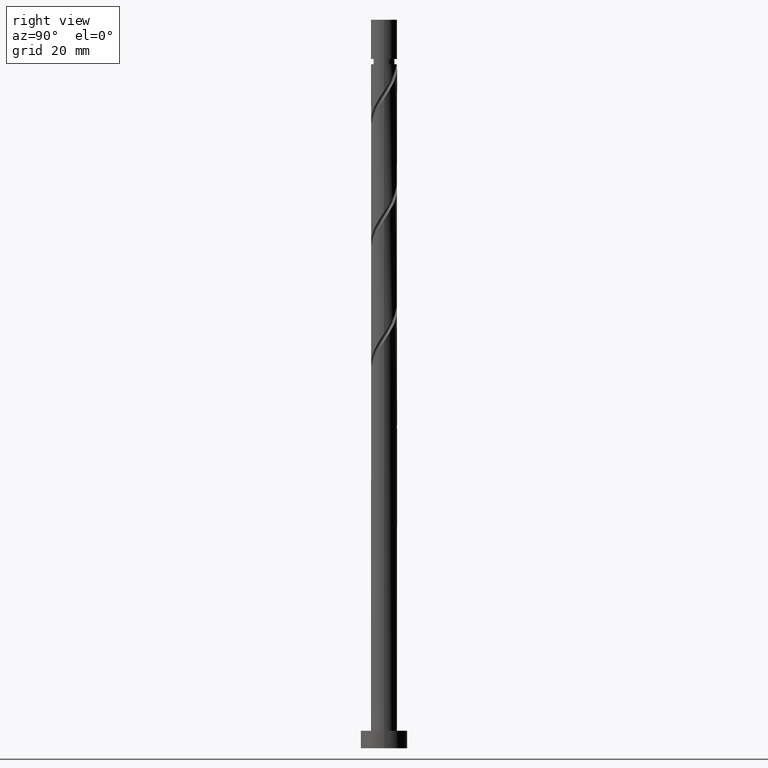
[diagram: clean part render]
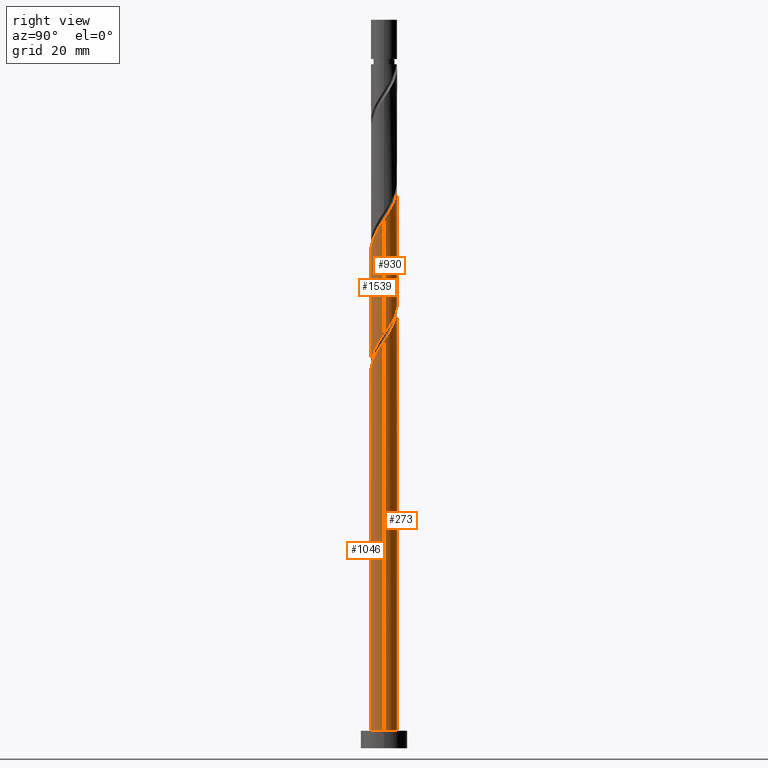
[diagram: same view with one multi-face feature highlighted, each face labeled with its STEP entity id]
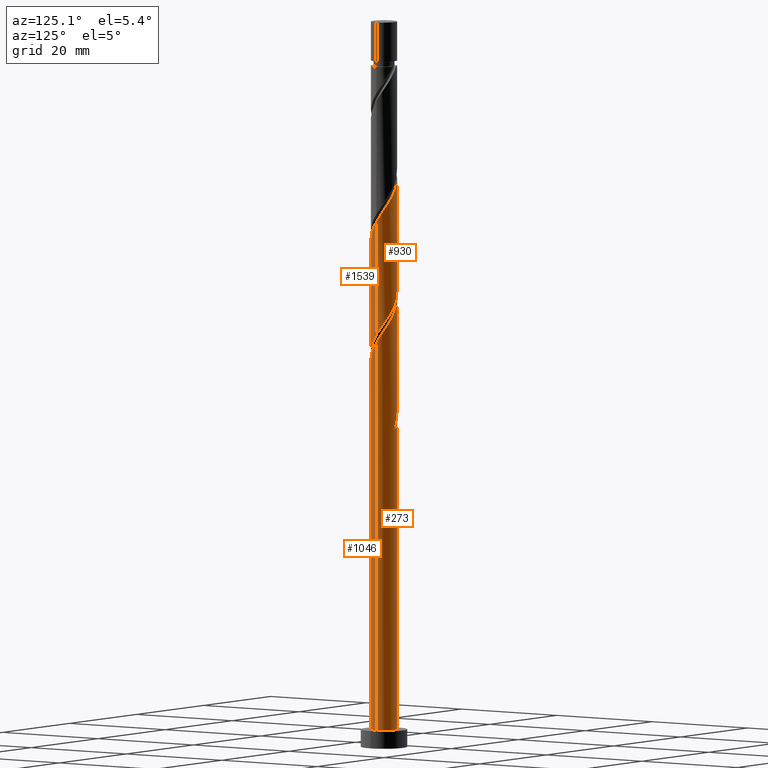
[diagram: same view with one multi-face feature highlighted, each face labeled with its STEP entity id]
A machine part, right view. The highlighted faces form ONE feature: a constant-radius fillet chain: 4 tangent blend faces with common blend radius 2.25 mm. The faces share edges in the B-rep.
A second angle (auxiliary view) of the same feature is appended — it is thin or edge-on in the first view.
Their STEP definitions:
[1] entity #930 (Cylinder):
#17 = CARTESIAN_POINT ( 'NONE',  ( -0.4477443466979789677, 2.205000000000003180, 96.54250534596350519 ) ) ;
#34 = CARTESIAN_POINT ( 'NONE',  ( -1.899155269134960689, 1.258056147528825885, 99.14667201263016238 ) ) ;
#44 = CARTESIAN_POINT ( 'NONE',  ( 1.417443264702794803, 1.783353750091892564, 74.14667201263016238 ) ) ;
#59 = CARTESIAN_POINT ( 'NONE',  ( -1.783353750091892564, 1.417443264702794803, 79.35500534596349098 ) ) ;
#67 = CARTESIAN_POINT ( 'NONE',  ( 2.194964723631358972, 0.6096112438530348898, 72.06333867929680537 ) ) ;
#122 = CARTESIAN_POINT ( 'NONE',  ( -2.047059996383162161, 0.9338336956909314424, 99.66750534596350519 ) ) ;
#131 = CARTESIAN_POINT ( 'NONE',  ( -1.417443264702797467, 1.783353750091896783, 98.10500534596351940 ) ) ;
#139 = CARTESIAN_POINT ( 'NONE',  ( -0.09850665578237585707, 2.275915737760237256, 96.02167201263017660 ) ) ;
#147 = CARTESIAN_POINT ( 'NONE',  ( 0.2555522940353308625, 2.235440230695800778, 95.50083867929684800 ) ) ;
#160 = CARTESIAN_POINT ( 'NONE',  ( -0.9338336956909289999, 2.047059996383158609, 77.79250534596351940 ) ) ;
#218 = CARTESIAN_POINT ( 'NONE',  ( -2.250000000000000000, 0.000000000000000000, 125.0000000000000000 ) ) ;
#232 = DIRECTION ( 'NONE',  ( -1.000000000000000000, 0.000000000000000000, 0.000000000000000000 ) ) ;
#237 = CARTESIAN_POINT ( 'NONE',  ( 2.205000000000003180, 0.4477443466979790787, 91.33417201263019081 ) ) ;
#244 = CARTESIAN_POINT ( 'NONE',  ( 2.134084262239768659, 0.7969820376135818840, 91.85500534596350519 ) ) ;
#269 = CARTESIAN_POINT ( 'NONE',  ( 2.250000000000002665, 1.874137847900713446E-15, 90.66936957115989060 ) ) ;
#279 = DIRECTION ( 'NONE',  ( -0.000000000000000000, -0.000000000000000000, -1.000000000000000000 ) ) ;
#292 = ORIENTED_EDGE ( 'NONE', *, *, #847, .F. ) ;
#399 = CARTESIAN_POINT ( 'NONE',  ( 2.047059996383158609, 0.9338336956909285558, 72.58417201263013396 ) ) ;
#418 = EDGE_CURVE ( 'NONE', #1467, #1109, #584, .T. ) ;
#518 = CARTESIAN_POINT ( 'NONE',  ( -2.235440230695800778, 0.2555522940353303629, 100.7091720126301766 ) ) ;
#521 = CARTESIAN_POINT ( 'NONE',  ( 1.107212651158188788, 1.958719006165828169, 74.66750534596346256 ) ) ;
#538 = CARTESIAN_POINT ( 'NONE',  ( 0.7969820376135817730, 2.134084262239763774, 75.18833867929680537 ) ) ;
#540 = AXIS2_PLACEMENT_3D ( 'NONE', #1193, #585, #232 ) ;
#555 = CARTESIAN_POINT ( 'NONE',  ( 2.235440230695796782, 0.2555522940353288086, 71.54250534596350519 ) ) ;
#584 =( BOUNDED_CURVE ( )  B_SPLINE_CURVE ( 2, ( #269, #743, #237, #244, #870, #725, #987, #1229, #1219, #1364, #147, #139, #17, #717, #707, #131, #630, #34, #122, #1096, #518, #1474, #1355 ),
 .UNSPECIFIED., .F., .T. ) 
 B_SPLINE_CURVE_WITH_KNOTS ( ( 3, 2, 2, 2, 2, 2, 2, 2, 2, 2, 2, 3 ),
 ( 0.4295322023138553047, 0.4375000000000000000, 0.4499999999999999556, 0.4625000000000000222, 0.4749999999999999778, 0.4875000000000000444, 0.5000000000000000000, 0.5124999999999999556, 0.5250000000000000222, 0.5374999999999999778, 0.5500000000000000444, 0.5545322023138551382 ),
 .UNSPECIFIED. ) 
 CURVE ( )  GEOMETRIC_REPRESENTATION_ITEM ( )  RATIONAL_B_SPLINE_CURVE ( ( 0.9039174447099407317, 0.9019565955404702517, 0.9090909090909186085, 0.8978984914501346726, 0.9090909090909186085, 0.8978984914501346726, 0.9090909090909186085, 0.8978984914501346726, 0.9090909090909186085, 0.8978984914501346726, 0.9090909090909186085, 0.8978984914501346726, 0.9090909090909186085, 0.8978984914501346726, 0.9090909090909186085, 0.8978984914501346726, 0.9090909090909186085, 0.8978984914501346726, 0.9090909090909186085, 0.8978984914501346726, 0.9090909090909186085, 0.9050328050005831404, 0.9039174447099409537 ) ) 
 REPRESENTATION_ITEM ( '' )  );
#585 = DIRECTION ( 'NONE',  ( -0.000000000000000000, -0.000000000000000000, -1.000000000000000000 ) ) ;
#630 = CARTESIAN_POINT ( 'NONE',  ( -1.658299266918879189, 1.520704948810361445, 98.62583867929683379 ) ) ;
#632 = CARTESIAN_POINT ( 'NONE',  ( -2.204999999999998295, 0.4477443466979791342, 80.91750534596350519 ) ) ;
#639 = CARTESIAN_POINT ( 'NONE',  ( -1.520704948810358115, 1.658299266918875858, 78.83417201263016238 ) ) ;
#647 = CARTESIAN_POINT ( 'NONE',  ( -1.958719006165828169, 1.107212651158188343, 79.87583867929683379 ) ) ;
#662 = CARTESIAN_POINT ( 'NONE',  ( 0.4477443466979795783, 2.204999999999998295, 75.70917201263017660 ) ) ;
#688 = VERTEX_POINT ( 'NONE', #1390 ) ;
#691 = FACE_OUTER_BOUND ( 'NONE', #1553, .T. ) ;
#696 = DIRECTION ( 'NONE',  ( -0.000000000000000000, -0.000000000000000000, -1.000000000000000000 ) ) ;
#707 = CARTESIAN_POINT ( 'NONE',  ( -1.107212651158190120, 1.958719006165832388, 97.58417201263016238 ) ) ;
#717 = CARTESIAN_POINT ( 'NONE',  ( -0.7969820376135825502, 2.134084262239768659, 97.06333867929684800 ) ) ;
#725 = CARTESIAN_POINT ( 'NONE',  ( 1.783353750091897227, 1.417443264702797245, 92.89667201263016238 ) ) ;
#743 = CARTESIAN_POINT ( 'NONE',  ( 2.250000000000001332, 0.2261335084333251644, 91.00367414656773235 ) ) ;
#777 = CARTESIAN_POINT ( 'NONE',  ( -0.6096112438530351119, 2.194964723631358972, 77.27167201263017660 ) ) ;
#847 = EDGE_CURVE ( 'NONE', #1109, #688, #1534, .T. ) ;
#854 = CARTESIAN_POINT ( 'NONE',  ( 2.249999999999998224, 3.118565378906812879E-15, 71.16564112076710558 ) ) ;
#870 = CARTESIAN_POINT ( 'NONE',  ( 1.958719006165832832, 1.107212651158189454, 92.37583867929687642 ) ) ;
#875 = CARTESIAN_POINT ( 'NONE',  ( -2.250000000000003109, -1.004537886474782302E-15, 101.0860362378265620 ) ) ;
#882 = LINE ( 'NONE', #1376, #1151 ) ;
#890 = CARTESIAN_POINT ( 'NONE',  ( -1.258056147528822999, 1.899155269134957136, 78.31333867929681958 ) ) ;
#905 = ORIENTED_EDGE ( 'NONE', *, *, #1304, .F. ) ;
#930 = ADVANCED_FACE ( 'NONE', ( #691 ), #1185, .T. ) ;
#951 = CARTESIAN_POINT ( 'NONE',  ( 2.250000000000002665, 1.874137847900713446E-15, 90.66936957115989060 ) ) ;
#961 = ORIENTED_EDGE ( 'NONE', *, *, #418, .F. ) ;
#966 = ORIENTED_EDGE ( 'NONE', *, *, #1312, .T. ) ;
#987 = CARTESIAN_POINT ( 'NONE',  ( 1.520704948810361445, 1.658299266918878301, 93.41750534596350519 ) ) ;
#1007 = CARTESIAN_POINT ( 'NONE',  ( -2.134084262239763774, 0.7969820376135814399, 80.39667201263013396 ) ) ;
#1014 = CARTESIAN_POINT ( 'NONE',  ( -2.249999999999998668, 2.863682631592314102E-15, 81.58230778743374856 ) ) ;
#1021 = VECTOR ( 'NONE', #696, 1000.000000000000000 ) ;
#1024 = CARTESIAN_POINT ( 'NONE',  ( 2.249999999999998668, 0.1281909092544750717, 71.35515220997437780 ) ) ;
#1063 =( BOUNDED_CURVE ( )  B_SPLINE_CURVE ( 2, ( #1014, #1381, #632, #1007, #647, #59, #639, #890, #160, #777, #1143, #1277, #662, #538, #521, #44, #1268, #1129, #399, #67, #555, #1024, #1508 ),
 .UNSPECIFIED., .F., .T. ) 
 B_SPLINE_CURVE_WITH_KNOTS ( ( 3, 2, 2, 2, 2, 2, 2, 2, 2, 2, 2, 3 ),
 ( 0.6795322023138552492, 0.6875000000000000000, 0.6999999999999999556, 0.7125000000000000222, 0.7249999999999999778, 0.7375000000000000444, 0.7500000000000000000, 0.7624999999999999556, 0.7750000000000000222, 0.7874999999999999778, 0.8000000000000000444, 0.8045322023138551382 ),
 .UNSPECIFIED. ) 
 CURVE ( )  GEOMETRIC_REPRESENTATION_ITEM ( )  RATIONAL_B_SPLINE_CURVE ( ( 0.9039174447099332932, 0.9019565955404627022, 0.9090909090909110590, 0.8978984914501272341, 0.9090909090909110590, 0.8978984914501272341, 0.9090909090909110590, 0.8978984914501272341, 0.9090909090909110590, 0.8978984914501272341, 0.9090909090909110590, 0.8978984914501272341, 0.9090909090909110590, 0.8978984914501272341, 0.9090909090909110590, 0.8978984914501272341, 0.9090909090909110590, 0.8978984914501272341, 0.9090909090909110590, 0.8978984914501272341, 0.9090909090909110590, 0.9050328050005755909, 0.9039174447099334042 ) ) 
 REPRESENTATION_ITEM ( '' )  );
#1096 = CARTESIAN_POINT ( 'NONE',  ( -2.194964723631363412, 0.6096112438530368882, 100.1883386792968480 ) ) ;
#1109 = VERTEX_POINT ( 'NONE', #875 ) ;
#1129 = CARTESIAN_POINT ( 'NONE',  ( 1.899155269134957136, 1.258056147528822777, 73.10500534596347677 ) ) ;
#1143 = CARTESIAN_POINT ( 'NONE',  ( -0.2555522940353292527, 2.235440230695796782, 76.75083867929681958 ) ) ;
#1151 = VECTOR ( 'NONE', #279, 1000.000000000000000 ) ;
#1185 = CYLINDRICAL_SURFACE ( 'NONE', #540, 2.250000000000000000 ) ;
#1193 = CARTESIAN_POINT ( 'NONE',  ( 0.000000000000000000, 0.000000000000000000, 125.0000000000000000 ) ) ;
#1208 = VERTEX_POINT ( 'NONE', #854 ) ;
#1219 = CARTESIAN_POINT ( 'NONE',  ( 0.9338336956909318864, 2.047059996383162161, 94.45917201263014817 ) ) ;
#1229 = CARTESIAN_POINT ( 'NONE',  ( 1.258056147528826552, 1.899155269134960244, 93.93833867929684800 ) ) ;
#1268 = CARTESIAN_POINT ( 'NONE',  ( 1.658299266918875858, 1.520704948810357671, 73.62583867929681958 ) ) ;
#1277 = CARTESIAN_POINT ( 'NONE',  ( 0.09850665578237670361, 2.275915737760233259, 76.23000534596349098 ) ) ;
#1304 = EDGE_CURVE ( 'NONE', #688, #1208, #1063, .T. ) ;
#1312 = EDGE_CURVE ( 'NONE', #1467, #1208, #882, .T. ) ;
#1355 = CARTESIAN_POINT ( 'NONE',  ( -2.250000000000003109, -1.004537886474782302E-15, 101.0860362378265620 ) ) ;
#1364 = CARTESIAN_POINT ( 'NONE',  ( 0.6096112438530373323, 2.194964723631363412, 94.98000534596349098 ) ) ;
#1376 = CARTESIAN_POINT ( 'NONE',  ( 2.250000000000000000, 2.755455298081543792E-16, 125.0000000000000000 ) ) ;
#1381 = CARTESIAN_POINT ( 'NONE',  ( -2.249999999999998668, 0.2261335084333241652, 81.24800321202590681 ) ) ;
#1390 = CARTESIAN_POINT ( 'NONE',  ( -2.249999999999998668, 2.863682631592314102E-15, 81.58230778743374856 ) ) ;
#1467 = VERTEX_POINT ( 'NONE', #951 ) ;
#1474 = CARTESIAN_POINT ( 'NONE',  ( -2.250000000000002220, 0.1281909092544763207, 100.8965251486192614 ) ) ;
#1508 = CARTESIAN_POINT ( 'NONE',  ( 2.249999999999998224, 3.118565378906812879E-15, 71.16564112076710558 ) ) ;
#1534 = LINE ( 'NONE', #218, #1021 ) ;
#1553 = EDGE_LOOP ( 'NONE', ( #961, #966, #905, #292 ) ) ;
[2] entity #1539 (Cylinder):
#25 = CARTESIAN_POINT ( 'NONE',  ( 2.235440230695800778, -0.2555522940353305295, 90.29250534596349098 ) ) ;
#129 = CARTESIAN_POINT ( 'NONE',  ( 2.249999999999998224, 3.118565378906812879E-15, 71.16564112076710558 ) ) ;
#145 = CARTESIAN_POINT ( 'NONE',  ( 1.417443264702797023, -1.783353750091897227, 87.68833867929684800 ) ) ;
#163 = CARTESIAN_POINT ( 'NONE',  ( 1.899155269134960689, -1.258056147528826552, 88.73000534596350519 ) ) ;
#169 = CARTESIAN_POINT ( 'NONE',  ( -1.899155269134956914, -1.258056147528822999, 62.68833867929681247 ) ) ;
#175 = CARTESIAN_POINT ( 'NONE',  ( -2.194964723631358972, -0.6096112438530351119, 61.64667201263014107 ) ) ;
#180 = ORIENTED_EDGE ( 'NONE', *, *, #645, .F. ) ;
#190 = ORIENTED_EDGE ( 'NONE', *, *, #1312, .F. ) ;
#201 = CARTESIAN_POINT ( 'NONE',  ( -1.417443264702794803, -1.783353750091892564, 63.73000534596348388 ) ) ;
#279 = DIRECTION ( 'NONE',  ( -0.000000000000000000, -0.000000000000000000, -1.000000000000000000 ) ) ;
#288 = CARTESIAN_POINT ( 'NONE',  ( 2.249999999999998668, -0.2261335084333213619, 70.83133654535926382 ) ) ;
#318 = EDGE_CURVE ( 'NONE', #484, #412, #1423, .T. ) ;
#357 = CARTESIAN_POINT ( 'NONE',  ( 0.000000000000000000, 0.000000000000000000, 125.0000000000000000 ) ) ;
#361 =( BOUNDED_CURVE ( )  B_SPLINE_CURVE ( 2, ( #129, #288, #1383, #921, #911, #1171, #1033, #416, #408, #1518, #1009, #765, #1496, #1511, #900, #201, #1503, #169, #425, #175, #533, #1163, #1281 ),
 .UNSPECIFIED., .F., .T. ) 
 B_SPLINE_CURVE_WITH_KNOTS ( ( 3, 2, 2, 2, 2, 2, 2, 2, 2, 2, 2, 3 ),
 ( 0.8045322023138551382, 0.8125000000000000000, 0.8249999999999999556, 0.8375000000000000222, 0.8499999999999999778, 0.8625000000000000444, 0.8750000000000000000, 0.8874999999999999556, 0.9000000000000000222, 0.9124999999999999778, 0.9250000000000000444, 0.9295322023138552492 ),
 .UNSPECIFIED. ) 
 CURVE ( )  GEOMETRIC_REPRESENTATION_ITEM ( )  RATIONAL_B_SPLINE_CURVE ( ( 0.9039174447099334042, 0.9019565955404627022, 0.9090909090909110590, 0.8978984914501272341, 0.9090909090909110590, 0.8978984914501272341, 0.9090909090909110590, 0.8978984914501272341, 0.9090909090909110590, 0.8978984914501272341, 0.9090909090909110590, 0.8978984914501272341, 0.9090909090909110590, 0.8978984914501272341, 0.9090909090909110590, 0.8978984914501272341, 0.9090909090909110590, 0.8978984914501272341, 0.9090909090909110590, 0.8978984914501272341, 0.9090909090909110590, 0.9050328050005754799, 0.9039174447099332932 ) ) 
 REPRESENTATION_ITEM ( '' )  );
#375 = CARTESIAN_POINT ( 'NONE',  ( 0.7969820376135819950, -2.134084262239768659, 86.64667201263014817 ) ) ;
#383 = CARTESIAN_POINT ( 'NONE',  ( -2.134084262239768659, -0.7969820376135821061, 81.43833867929681958 ) ) ;
#394 = CARTESIAN_POINT ( 'NONE',  ( 0.4477443466979791897, -2.205000000000003180, 86.12583867929683379 ) ) ;
#408 = CARTESIAN_POINT ( 'NONE',  ( 0.9338336956909286668, -2.047059996383158609, 67.37583867929680537 ) ) ;
#412 = VERTEX_POINT ( 'NONE', #1106 ) ;
#416 = CARTESIAN_POINT ( 'NONE',  ( 1.258056147528822777, -1.899155269134957136, 67.89667201263014817 ) ) ;
#425 = CARTESIAN_POINT ( 'NONE',  ( -2.047059996383158609, -0.9338336956909286668, 62.16750534596349098 ) ) ;
#484 = VERTEX_POINT ( 'NONE', #620 ) ;
#493 = CARTESIAN_POINT ( 'NONE',  ( -1.783353750091896783, -1.417443264702797467, 82.48000534596350519 ) ) ;
#500 = CARTESIAN_POINT ( 'NONE',  ( -1.258056147528825885, -1.899155269134960244, 83.52167201263016238 ) ) ;
#533 = CARTESIAN_POINT ( 'NONE',  ( -2.235440230695796782, -0.2555522940353290862, 61.12583867929681247 ) ) ;
#535 =( BOUNDED_CURVE ( )  B_SPLINE_CURVE ( 2, ( #612, #1217, #1227, #383, #1337, #493, #868, #500, #985, #1352, #1472, #735, #394, #375, #1236, #145, #752, #163, #877, #741, #25, #1243, #628 ),
 .UNSPECIFIED., .F., .T. ) 
 B_SPLINE_CURVE_WITH_KNOTS ( ( 3, 2, 2, 2, 2, 2, 2, 2, 2, 2, 2, 3 ),
 ( 0.3045322023138552492, 0.3125000000000000000, 0.3249999999999999556, 0.3375000000000000222, 0.3499999999999999778, 0.3625000000000000444, 0.3750000000000000000, 0.3874999999999999556, 0.4000000000000000222, 0.4124999999999999778, 0.4250000000000000444, 0.4295322023138553047 ),
 .UNSPECIFIED. ) 
 CURVE ( )  GEOMETRIC_REPRESENTATION_ITEM ( )  RATIONAL_B_SPLINE_CURVE ( ( 0.9039174447099407317, 0.9019565955404702517, 0.9090909090909186085, 0.8978984914501346726, 0.9090909090909186085, 0.8978984914501346726, 0.9090909090909186085, 0.8978984914501346726, 0.9090909090909186085, 0.8978984914501346726, 0.9090909090909186085, 0.8978984914501346726, 0.9090909090909186085, 0.8978984914501346726, 0.9090909090909186085, 0.8978984914501346726, 0.9090909090909186085, 0.8978984914501346726, 0.9090909090909186085, 0.8978984914501346726, 0.9090909090909186085, 0.9050328050005829184, 0.9039174447099407317 ) ) 
 REPRESENTATION_ITEM ( '' )  );
#541 = DIRECTION ( 'NONE',  ( -0.000000000000000000, -0.000000000000000000, -1.000000000000000000 ) ) ;
#599 = EDGE_CURVE ( 'NONE', #484, #1467, #535, .T. ) ;
#603 = DIRECTION ( 'NONE',  ( -1.000000000000000000, 0.000000000000000000, 0.000000000000000000 ) ) ;
#609 = AXIS2_PLACEMENT_3D ( 'NONE', #357, #824, #603 ) ;
#612 = CARTESIAN_POINT ( 'NONE',  ( -2.250000000000003109, -2.144013697998416549E-15, 80.25270290449323340 ) ) ;
#620 = CARTESIAN_POINT ( 'NONE',  ( -2.250000000000003109, -2.144013697998416549E-15, 80.25270290449323340 ) ) ;
#628 = CARTESIAN_POINT ( 'NONE',  ( 2.250000000000002665, 1.874137847900713446E-15, 90.66936957115989060 ) ) ;
#645 = EDGE_CURVE ( 'NONE', #1208, #412, #361, .T. ) ;
#669 = ORIENTED_EDGE ( 'NONE', *, *, #318, .T. ) ;
#735 = CARTESIAN_POINT ( 'NONE',  ( 0.09850665578237610687, -2.275915737760237256, 85.60500534596351940 ) ) ;
#741 = CARTESIAN_POINT ( 'NONE',  ( 2.194964723631363412, -0.6096112438530371103, 89.77167201263014817 ) ) ;
#752 = CARTESIAN_POINT ( 'NONE',  ( 1.658299266918878523, -1.520704948810361445, 88.20917201263016238 ) ) ;
#765 = CARTESIAN_POINT ( 'NONE',  ( -0.09850665578237696729, -2.275915737760233259, 65.81333867929681958 ) ) ;
#805 = CARTESIAN_POINT ( 'NONE',  ( -2.250000000000000000, 0.000000000000000000, 125.0000000000000000 ) ) ;
#824 = DIRECTION ( 'NONE',  ( -0.000000000000000000, -0.000000000000000000, -1.000000000000000000 ) ) ;
#828 = CYLINDRICAL_SURFACE ( 'NONE', #609, 2.250000000000000000 ) ;
#854 = CARTESIAN_POINT ( 'NONE',  ( 2.249999999999998224, 3.118565378906812879E-15, 71.16564112076710558 ) ) ;
#868 = CARTESIAN_POINT ( 'NONE',  ( -1.520704948810361445, -1.658299266918878523, 83.00083867929681958 ) ) ;
#877 = CARTESIAN_POINT ( 'NONE',  ( 2.047059996383161717, -0.9338336956909318864, 89.25083867929681958 ) ) ;
#882 = LINE ( 'NONE', #1376, #1151 ) ;
#900 = CARTESIAN_POINT ( 'NONE',  ( -1.107212651158188343, -1.958719006165828169, 64.25083867929681958 ) ) ;
#911 = CARTESIAN_POINT ( 'NONE',  ( 1.958719006165828169, -1.107212651158188566, 69.45917201263016238 ) ) ;
#921 = CARTESIAN_POINT ( 'NONE',  ( 2.134084262239763774, -0.7969820376135816620, 69.98000534596347677 ) ) ;
#951 = CARTESIAN_POINT ( 'NONE',  ( 2.250000000000002665, 1.874137847900713446E-15, 90.66936957115989060 ) ) ;
#981 = ORIENTED_EDGE ( 'NONE', *, *, #599, .F. ) ;
#985 = CARTESIAN_POINT ( 'NONE',  ( -0.9338336956909318864, -2.047059996383161717, 84.04250534596349098 ) ) ;
#1009 = CARTESIAN_POINT ( 'NONE',  ( 0.2555522940353289751, -2.235440230695796782, 66.33417201263016238 ) ) ;
#1033 = CARTESIAN_POINT ( 'NONE',  ( 1.520704948810357671, -1.658299266918875858, 68.41750534596349098 ) ) ;
#1061 = VECTOR ( 'NONE', #541, 1000.000000000000000 ) ;
#1106 = CARTESIAN_POINT ( 'NONE',  ( -2.249999999999998668, 2.863682631592314102E-15, 60.74897445410041286 ) ) ;
#1151 = VECTOR ( 'NONE', #279, 1000.000000000000000 ) ;
#1163 = CARTESIAN_POINT ( 'NONE',  ( -2.249999999999999112, -0.1281909092544722684, 60.93848554330769929 ) ) ;
#1171 = CARTESIAN_POINT ( 'NONE',  ( 1.783353750091892564, -1.417443264702794803, 68.93833867929681958 ) ) ;
#1208 = VERTEX_POINT ( 'NONE', #854 ) ;
#1217 = CARTESIAN_POINT ( 'NONE',  ( -2.250000000000002665, -0.2261335084333238876, 80.58700747990106095 ) ) ;
#1227 = CARTESIAN_POINT ( 'NONE',  ( -2.205000000000003180, -0.4477443466979792452, 80.91750534596350519 ) ) ;
#1236 = CARTESIAN_POINT ( 'NONE',  ( 1.107212651158189676, -1.958719006165832832, 87.16750534596350519 ) ) ;
#1243 = CARTESIAN_POINT ( 'NONE',  ( 2.250000000000003109, -0.1281909092544719353, 90.47985848195263259 ) ) ;
#1281 = CARTESIAN_POINT ( 'NONE',  ( -2.249999999999998668, 2.863682631592314102E-15, 60.74897445410041286 ) ) ;
#1312 = EDGE_CURVE ( 'NONE', #1467, #1208, #882, .T. ) ;
#1337 = CARTESIAN_POINT ( 'NONE',  ( -1.958719006165832832, -1.107212651158190120, 81.95917201263017660 ) ) ;
#1352 = CARTESIAN_POINT ( 'NONE',  ( -0.6096112438530371103, -2.194964723631363412, 84.56333867929683379 ) ) ;
#1376 = CARTESIAN_POINT ( 'NONE',  ( 2.250000000000000000, 2.755455298081543792E-16, 125.0000000000000000 ) ) ;
#1383 = CARTESIAN_POINT ( 'NONE',  ( 2.204999999999998295, -0.4477443466979794118, 70.50083867929683379 ) ) ;
#1423 = LINE ( 'NONE', #805, #1061 ) ;
#1435 = EDGE_LOOP ( 'NONE', ( #190, #981, #669, #180 ) ) ;
#1467 = VERTEX_POINT ( 'NONE', #951 ) ;
#1472 = CARTESIAN_POINT ( 'NONE',  ( -0.2555522940353304184, -2.235440230695800778, 85.08417201263019081 ) ) ;
#1496 = CARTESIAN_POINT ( 'NONE',  ( -0.4477443466979792452, -2.204999999999998295, 65.29250534596347677 ) ) ;
#1503 = CARTESIAN_POINT ( 'NONE',  ( -1.658299266918875858, -1.520704948810357671, 63.20917201263016949 ) ) ;
#1511 = CARTESIAN_POINT ( 'NONE',  ( -0.7969820376135815509, -2.134084262239763774, 64.77167201263014817 ) ) ;
#1518 = CARTESIAN_POINT ( 'NONE',  ( 0.6096112438530348898, -2.194964723631358972, 66.85500534596349098 ) ) ;
#1539 = ADVANCED_FACE ( 'NONE', ( #1551 ), #828, .T. ) ;
#1551 = FACE_OUTER_BOUND ( 'NONE', #1435, .T. ) ;
[3] entity #273 (Cylinder):
#28 = CARTESIAN_POINT ( 'NONE',  ( 2.250000000000003997, 0.2261335084333166157, 70.17034081323440375 ) ) ;
#42 = EDGE_CURVE ( 'NONE', #537, #1149, #398, .T. ) ;
#71 = CARTESIAN_POINT ( 'NONE',  ( -1.107212651158190120, 1.958719006165832388, 55.91750534596349809 ) ) ;
#88 = DIRECTION ( 'NONE',  ( -1.000000000000000000, 0.000000000000000000, 0.000000000000000000 ) ) ;
#104 = VERTEX_POINT ( 'NONE', #496 ) ;
#110 = CARTESIAN_POINT ( 'NONE',  ( -1.899155269134960689, 1.258056147528825885, 57.48000534596349809 ) ) ;
#137 = CARTESIAN_POINT ( 'NONE',  ( -2.204999999999998295, 0.4477443466979791342, 60.08417201263015528 ) ) ;
#142 = CARTESIAN_POINT ( 'NONE',  ( 0.4477443466979794118, 2.204999999999998295, 54.87583867929682668 ) ) ;
#154 = CARTESIAN_POINT ( 'NONE',  ( -0.9338336956909289999, 2.047059996383158609, 56.95917201263016949 ) ) ;
#156 = CARTESIAN_POINT ( 'NONE',  ( -2.194964723631363412, 0.6096112438530368882, 58.52167201263016949 ) ) ;
#159 = CARTESIAN_POINT ( 'NONE',  ( 1.783353750091897227, 1.417443264702797245, 72.06333867929680537 ) ) ;
#164 = EDGE_CURVE ( 'NONE', #104, #484, #783, .T. ) ;
#174 = CARTESIAN_POINT ( 'NONE',  ( -2.235440230695800778, 0.2555522940353303629, 79.87583867929681958 ) ) ;
#179 = CARTESIAN_POINT ( 'NONE',  ( 0.000000000000000000, 0.000000000000000000, 54.87583867929687642 ) ) ;
#195 = CARTESIAN_POINT ( 'NONE',  ( -0.4477443466979789122, 2.205000000000003180, 54.87583867929682668 ) ) ;
#234 = DIRECTION ( 'NONE',  ( 1.000000000000000000, 0.000000000000000000, 0.000000000000000000 ) ) ;
#265 = DIRECTION ( 'NONE',  ( -0.000000000000000000, -0.000000000000000000, -1.000000000000000000 ) ) ;
#272 = CARTESIAN_POINT ( 'NONE',  ( 0.6096112438530373323, 2.194964723631363412, 74.14667201263020502 ) ) ;
#273 = ADVANCED_FACE ( 'NONE', ( #1077 ), #1196, .T. ) ;
#318 = EDGE_CURVE ( 'NONE', #484, #412, #1423, .T. ) ;
#342 = CARTESIAN_POINT ( 'NONE',  ( 2.250000000000000000, 2.755455298081543792E-16, 125.0000000000000000 ) ) ;
#370 = AXIS2_PLACEMENT_3D ( 'NONE', #1202, #265, #88 ) ;
#388 = CARTESIAN_POINT ( 'NONE',  ( 1.258056147528826552, 1.899155269134960244, 73.10500534596346256 ) ) ;
#398 = CIRCLE ( 'NONE', #503, 2.250000000000000000 ) ;
#407 = CARTESIAN_POINT ( 'NONE',  ( -0.7969820376135825502, 2.134084262239768659, 76.23000534596351940 ) ) ;
#412 = VERTEX_POINT ( 'NONE', #1106 ) ;
#415 = CARTESIAN_POINT ( 'NONE',  ( -2.194964723631363412, 0.6096112438530368882, 79.35500534596349098 ) ) ;
#423 = CARTESIAN_POINT ( 'NONE',  ( -2.047059996383162161, 0.9338336956909314424, 78.83417201263016238 ) ) ;
#429 = ORIENTED_EDGE ( 'NONE', *, *, #318, .F. ) ;
#459 = EDGE_CURVE ( 'NONE', #537, #615, #465, .T. ) ;
#460 = EDGE_CURVE ( 'NONE', #412, #1149, #1126, .T. ) ;
#463 = ORIENTED_EDGE ( 'NONE', *, *, #42, .T. ) ;
#465 =( BOUNDED_CURVE ( )  B_SPLINE_CURVE ( 2, ( #195, #1165, #71, #1430, #1192, #110, #711, #156, #1004, #1540, #933 ),
 .UNSPECIFIED., .F., .T. ) 
 B_SPLINE_CURVE_WITH_KNOTS ( ( 3, 2, 2, 2, 2, 3 ),
 ( 0.000000000000000000, 0.01249999999999995559, 0.02500000000000002220, 0.03749999999999997780, 0.05000000000000004441, 0.05453220231385529082 ),
 .UNSPECIFIED. ) 
 CURVE ( )  GEOMETRIC_REPRESENTATION_ITEM ( )  RATIONAL_B_SPLINE_CURVE ( ( 0.9090909090909186085, 0.8978984914501346726, 0.9090909090909186085, 0.8978984914501346726, 0.9090909090909186085, 0.8978984914501346726, 0.9090909090909186085, 0.8978984914501346726, 0.9090909090909186085, 0.9050328050005829184, 0.9039174447099409537 ) ) 
 REPRESENTATION_ITEM ( '' )  );
#483 = CARTESIAN_POINT ( 'NONE',  ( 0.000000000000000000, 0.000000000000000000, 3.000000000000000000 ) ) ;
#484 = VERTEX_POINT ( 'NONE', #620 ) ;
#496 = CARTESIAN_POINT ( 'NONE',  ( 2.250000000000002665, 1.874137847900713446E-15, 69.83603623782656200 ) ) ;
#503 = AXIS2_PLACEMENT_3D ( 'NONE', #179, #1429, #940 ) ;
#508 = CARTESIAN_POINT ( 'NONE',  ( -0.6096112438530351119, 2.194964723631358972, 56.43833867929681247 ) ) ;
#523 = CARTESIAN_POINT ( 'NONE',  ( -1.658299266918879189, 1.520704948810361445, 77.79250534596351940 ) ) ;
#537 = VERTEX_POINT ( 'NONE', #846 ) ;
#541 = DIRECTION ( 'NONE',  ( -0.000000000000000000, -0.000000000000000000, -1.000000000000000000 ) ) ;
#549 = DIRECTION ( 'NONE',  ( -0.000000000000000000, -0.000000000000000000, -1.000000000000000000 ) ) ;
#597 = LINE ( 'NONE', #342, #864 ) ;
#604 = CARTESIAN_POINT ( 'NONE',  ( -1.258056147528822999, 1.899155269134957136, 57.48000534596349098 ) ) ;
#615 = VERTEX_POINT ( 'NONE', #1490 ) ;
#620 = CARTESIAN_POINT ( 'NONE',  ( -2.250000000000003109, -2.144013697998416549E-15, 80.25270290449323340 ) ) ;
#638 = CARTESIAN_POINT ( 'NONE',  ( 2.205000000000003180, 0.4477443466979790787, 70.50083867929686221 ) ) ;
#641 = CARTESIAN_POINT ( 'NONE',  ( -0.4477443466979789677, 2.205000000000003180, 75.70917201263019081 ) ) ;
#655 = CARTESIAN_POINT ( 'NONE',  ( -2.250000000000003553, 0.1281909092544732398, 80.06319181528596118 ) ) ;
#656 = LINE ( 'NONE', #759, #808 ) ;
#711 = CARTESIAN_POINT ( 'NONE',  ( -2.047059996383162161, 0.9338336956909314424, 58.00083867929683379 ) ) ;
#715 = CARTESIAN_POINT ( 'NONE',  ( -2.134084262239763774, 0.7969820376135814399, 59.56333867929682668 ) ) ;
#723 = CARTESIAN_POINT ( 'NONE',  ( 0.09850665578237670361, 2.275915737760233259, 55.39667201263014107 ) ) ;
#738 = CARTESIAN_POINT ( 'NONE',  ( 2.250000000000000000, 2.755455298081543792E-16, 3.000000000000000000 ) ) ;
#747 = CARTESIAN_POINT ( 'NONE',  ( 0.2555522940353308625, 2.235440230695800778, 74.66750534596350519 ) ) ;
#759 = CARTESIAN_POINT ( 'NONE',  ( -2.250000000000000000, 0.000000000000000000, 125.0000000000000000 ) ) ;
#769 = ORIENTED_EDGE ( 'NONE', *, *, #460, .F. ) ;
#775 = EDGE_LOOP ( 'NONE', ( #1313, #1345, #814, #1211, #947, #463, #769, #429 ) ) ;
#783 =( BOUNDED_CURVE ( )  B_SPLINE_CURVE ( 2, ( #1375, #28, #638, #1341, #851, #159, #1359, #388, #873, #272, #747, #1471, #641, #407, #1138, #1162, #523, #1510, #423, #415, #174, #655, #892 ),
 .UNSPECIFIED., .F., .T. ) 
 B_SPLINE_CURVE_WITH_KNOTS ( ( 3, 2, 2, 2, 2, 2, 2, 2, 2, 2, 2, 3 ),
 ( 0.1795322023138549994, 0.1875000000000000000, 0.1999999999999999556, 0.2125000000000000222, 0.2249999999999999778, 0.2375000000000000444, 0.2500000000000000000, 0.2624999999999999556, 0.2750000000000000222, 0.2874999999999999778, 0.3000000000000000444, 0.3045322023138552492 ),
 .UNSPECIFIED. ) 
 CURVE ( )  GEOMETRIC_REPRESENTATION_ITEM ( )  RATIONAL_B_SPLINE_CURVE ( ( 0.9039174447099409537, 0.9019565955404700297, 0.9090909090909186085, 0.8978984914501346726, 0.9090909090909186085, 0.8978984914501346726, 0.9090909090909186085, 0.8978984914501346726, 0.9090909090909186085, 0.8978984914501346726, 0.9090909090909186085, 0.8978984914501346726, 0.9090909090909186085, 0.8978984914501346726, 0.9090909090909186085, 0.8978984914501346726, 0.9090909090909186085, 0.8978984914501346726, 0.9090909090909186085, 0.8978984914501346726, 0.9090909090909186085, 0.9050328050005829184, 0.9039174447099407317 ) ) 
 REPRESENTATION_ITEM ( '' )  );
#798 = EDGE_CURVE ( 'NONE', #615, #1358, #656, .T. ) ;
#805 = CARTESIAN_POINT ( 'NONE',  ( -2.250000000000000000, 0.000000000000000000, 125.0000000000000000 ) ) ;
#808 = VECTOR ( 'NONE', #549, 1000.000000000000000 ) ;
#810 = CIRCLE ( 'NONE', #1556, 2.250000000000000000 ) ;
#814 = ORIENTED_EDGE ( 'NONE', *, *, #1499, .T. ) ;
#837 = CARTESIAN_POINT ( 'NONE',  ( -1.520704948810358115, 1.658299266918875858, 58.00083867929682668 ) ) ;
#846 = CARTESIAN_POINT ( 'NONE',  ( -0.4477443466979789122, 2.205000000000003180, 54.87583867929682668 ) ) ;
#851 = CARTESIAN_POINT ( 'NONE',  ( 1.958719006165832832, 1.107212651158189454, 71.54250534596353361 ) ) ;
#857 = CARTESIAN_POINT ( 'NONE',  ( -0.2555522940353292527, 2.235440230695796782, 55.91750534596349098 ) ) ;
#864 = VECTOR ( 'NONE', #1440, 1000.000000000000000 ) ;
#873 = CARTESIAN_POINT ( 'NONE',  ( 0.9338336956909318864, 2.047059996383162161, 73.62583867929680537 ) ) ;
#892 = CARTESIAN_POINT ( 'NONE',  ( -2.250000000000003109, -2.144013697998416549E-15, 80.25270290449323340 ) ) ;
#933 = CARTESIAN_POINT ( 'NONE',  ( -2.250000000000003109, -2.144013697998416549E-15, 59.41936957115990481 ) ) ;
#940 = DIRECTION ( 'NONE',  ( 0.000000000000000000, 1.000000000000000000, -2.467162276944792382E-14 ) ) ;
#947 = ORIENTED_EDGE ( 'NONE', *, *, #459, .F. ) ;
#976 = CARTESIAN_POINT ( 'NONE',  ( -1.958719006165828169, 1.107212651158188343, 59.04250534596348388 ) ) ;
#1002 = CARTESIAN_POINT ( 'NONE',  ( -2.249999999999998668, 0.2261335084333241652, 60.41466987869257110 ) ) ;
#1004 = CARTESIAN_POINT ( 'NONE',  ( -2.235440230695800778, 0.2555522940353303629, 59.04250534596350519 ) ) ;
#1055 = CARTESIAN_POINT ( 'NONE',  ( -2.250000000000000000, 0.000000000000000000, 3.000000000000000000 ) ) ;
#1061 = VECTOR ( 'NONE', #541, 1000.000000000000000 ) ;
#1077 = FACE_OUTER_BOUND ( 'NONE', #775, .T. ) ;
#1085 = DIRECTION ( 'NONE',  ( 0.000000000000000000, 0.000000000000000000, 1.000000000000000000 ) ) ;
#1106 = CARTESIAN_POINT ( 'NONE',  ( -2.249999999999998668, 2.863682631592314102E-15, 60.74897445410041286 ) ) ;
#1121 = CARTESIAN_POINT ( 'NONE',  ( -2.249999999999998668, 2.863682631592314102E-15, 60.74897445410041286 ) ) ;
#1126 =( BOUNDED_CURVE ( )  B_SPLINE_CURVE ( 2, ( #1121, #1002, #137, #715, #976, #1481, #837, #604, #154, #508, #857, #723, #1463 ),
 .UNSPECIFIED., .F., .T. ) 
 B_SPLINE_CURVE_WITH_KNOTS ( ( 3, 2, 2, 2, 2, 2, 3 ),
 ( 0.9295322023138552492, 0.9375000000000000000, 0.9499999999999999556, 0.9625000000000000222, 0.9749999999999999778, 0.9875000000000000444, 1.000000000000000000 ),
 .UNSPECIFIED. ) 
 CURVE ( )  GEOMETRIC_REPRESENTATION_ITEM ( )  RATIONAL_B_SPLINE_CURVE ( ( 0.9039174447099332932, 0.9019565955404627022, 0.9090909090909110590, 0.8978984914501272341, 0.9090909090909110590, 0.8978984914501272341, 0.9090909090909110590, 0.8978984914501272341, 0.9090909090909110590, 0.8978984914501272341, 0.9090909090909110590, 0.8978984914501272341, 0.9090909090909110590 ) ) 
 REPRESENTATION_ITEM ( '' )  );
#1138 = CARTESIAN_POINT ( 'NONE',  ( -1.107212651158190120, 1.958719006165832388, 76.75083867929683379 ) ) ;
#1149 = VERTEX_POINT ( 'NONE', #142 ) ;
#1162 = CARTESIAN_POINT ( 'NONE',  ( -1.417443264702797467, 1.783353750091896783, 77.27167201263019081 ) ) ;
#1165 = CARTESIAN_POINT ( 'NONE',  ( -0.7969820376135825502, 2.134084262239768659, 55.39667201263015528 ) ) ;
#1192 = CARTESIAN_POINT ( 'NONE',  ( -1.658299266918879189, 1.520704948810361445, 56.95917201263014817 ) ) ;
#1196 = CYLINDRICAL_SURFACE ( 'NONE', #370, 2.250000000000000000 ) ;
#1202 = CARTESIAN_POINT ( 'NONE',  ( 0.000000000000000000, 0.000000000000000000, 125.0000000000000000 ) ) ;
#1204 = VERTEX_POINT ( 'NONE', #738 ) ;
#1211 = ORIENTED_EDGE ( 'NONE', *, *, #798, .F. ) ;
#1313 = ORIENTED_EDGE ( 'NONE', *, *, #164, .F. ) ;
#1341 = CARTESIAN_POINT ( 'NONE',  ( 2.134084262239768659, 0.7969820376135818840, 71.02167201263014817 ) ) ;
#1345 = ORIENTED_EDGE ( 'NONE', *, *, #1562, .T. ) ;
#1358 = VERTEX_POINT ( 'NONE', #1055 ) ;
#1359 = CARTESIAN_POINT ( 'NONE',  ( 1.520704948810361445, 1.658299266918878301, 72.58417201263014817 ) ) ;
#1375 = CARTESIAN_POINT ( 'NONE',  ( 2.250000000000002665, 1.874137847900713446E-15, 69.83603623782654779 ) ) ;
#1423 = LINE ( 'NONE', #805, #1061 ) ;
#1429 = DIRECTION ( 'NONE',  ( -1.369550182675367967E-29, -2.312964634635744160E-14, -1.000000000000000000 ) ) ;
#1430 = CARTESIAN_POINT ( 'NONE',  ( -1.417443264702797467, 1.783353750091896783, 56.43833867929682668 ) ) ;
#1440 = DIRECTION ( 'NONE',  ( -0.000000000000000000, -0.000000000000000000, -1.000000000000000000 ) ) ;
#1463 = CARTESIAN_POINT ( 'NONE',  ( 0.4477443466979794118, 2.204999999999998295, 54.87583867929682668 ) ) ;
#1471 = CARTESIAN_POINT ( 'NONE',  ( -0.09850665578237585707, 2.275915737760237256, 75.18833867929681958 ) ) ;
#1481 = CARTESIAN_POINT ( 'NONE',  ( -1.783353750091892564, 1.417443264702794803, 58.52167201263014817 ) ) ;
#1490 = CARTESIAN_POINT ( 'NONE',  ( -2.250000000000003109, -2.144013697998416549E-15, 59.41936957115990481 ) ) ;
#1499 = EDGE_CURVE ( 'NONE', #1204, #1358, #810, .T. ) ;
#1510 = CARTESIAN_POINT ( 'NONE',  ( -1.899155269134960689, 1.258056147528825885, 78.31333867929681958 ) ) ;
#1540 = CARTESIAN_POINT ( 'NONE',  ( -2.250000000000003553, 0.1281909092544718798, 59.22985848195263969 ) ) ;
#1556 = AXIS2_PLACEMENT_3D ( 'NONE', #483, #1085, #234 ) ;
#1562 = EDGE_CURVE ( 'NONE', #104, #1204, #597, .T. ) ;
[4] entity #1046 (Cylinder):
#3 = CARTESIAN_POINT ( 'NONE',  ( -2.250000000000002665, -0.2261335084333252754, 59.75367414656774656 ) ) ;
#50 = CARTESIAN_POINT ( 'NONE',  ( -1.520704948810361445, -1.658299266918878523, 62.16750534596350519 ) ) ;
#56 = AXIS2_PLACEMENT_3D ( 'NONE', #1132, #241, #1455 ) ;
#104 = VERTEX_POINT ( 'NONE', #496 ) ;
#107 = AXIS2_PLACEMENT_3D ( 'NONE', #617, #1205, #1342 ) ;
#172 = CARTESIAN_POINT ( 'NONE',  ( 1.417443264702797023, -1.783353750091897227, 66.85500534596349098 ) ) ;
#181 = CARTESIAN_POINT ( 'NONE',  ( -0.2555522940353304184, -2.235440230695800778, 64.25083867929683379 ) ) ;
#231 = ORIENTED_EDGE ( 'NONE', *, *, #1260, .F. ) ;
#241 = DIRECTION ( 'NONE',  ( 0.000000000000000000, 0.000000000000000000, 1.000000000000000000 ) ) ;
#286 = CARTESIAN_POINT ( 'NONE',  ( 0.09850665578237610687, -2.275915737760237256, 64.77167201263014817 ) ) ;
#294 = CARTESIAN_POINT ( 'NONE',  ( -0.9338336956909318864, -2.047059996383161717, 63.20917201263016949 ) ) ;
#342 = CARTESIAN_POINT ( 'NONE',  ( 2.250000000000000000, 2.755455298081543792E-16, 125.0000000000000000 ) ) ;
#355 = CARTESIAN_POINT ( 'NONE',  ( -2.250000000000003109, -2.144013697998416549E-15, 59.41936957115990481 ) ) ;
#405 = CARTESIAN_POINT ( 'NONE',  ( 2.194964723631363412, -0.6096112438530371103, 68.93833867929683379 ) ) ;
#421 = CARTESIAN_POINT ( 'NONE',  ( 2.250000000000002220, -0.1281909092544804840, 69.64652514861928978 ) ) ;
#496 = CARTESIAN_POINT ( 'NONE',  ( 2.250000000000002665, 1.874137847900713446E-15, 69.83603623782656200 ) ) ;
#547 = CARTESIAN_POINT ( 'NONE',  ( 2.250000000000002665, 1.874137847900713446E-15, 69.83603623782654779 ) ) ;
#549 = DIRECTION ( 'NONE',  ( -0.000000000000000000, -0.000000000000000000, -1.000000000000000000 ) ) ;
#597 = LINE ( 'NONE', #342, #864 ) ;
#610 = CARTESIAN_POINT ( 'NONE',  ( -2.205000000000003180, -0.4477443466979792452, 60.08417201263016238 ) ) ;
#615 = VERTEX_POINT ( 'NONE', #1490 ) ;
#616 = EDGE_CURVE ( 'NONE', #1358, #1204, #1404, .T. ) ;
#617 = CARTESIAN_POINT ( 'NONE',  ( 0.000000000000000000, 0.000000000000000000, 125.0000000000000000 ) ) ;
#653 = CARTESIAN_POINT ( 'NONE',  ( 1.899155269134960689, -1.258056147528826552, 67.89667201263017660 ) ) ;
#656 = LINE ( 'NONE', #759, #808 ) ;
#729 = ORIENTED_EDGE ( 'NONE', *, *, #616, .T. ) ;
#738 = CARTESIAN_POINT ( 'NONE',  ( 2.250000000000000000, 2.755455298081543792E-16, 3.000000000000000000 ) ) ;
#757 = CARTESIAN_POINT ( 'NONE',  ( 0.7969820376135819950, -2.134084262239768659, 65.81333867929683379 ) ) ;
#759 = CARTESIAN_POINT ( 'NONE',  ( -2.250000000000000000, 0.000000000000000000, 125.0000000000000000 ) ) ;
#763 = CARTESIAN_POINT ( 'NONE',  ( 2.235440230695800778, -0.2555522940353305295, 69.45917201263016238 ) ) ;
#798 = EDGE_CURVE ( 'NONE', #615, #1358, #656, .T. ) ;
#808 = VECTOR ( 'NONE', #549, 1000.000000000000000 ) ;
#850 = EDGE_LOOP ( 'NONE', ( #1074, #231, #1394, #729 ) ) ;
#864 = VECTOR ( 'NONE', #1440, 1000.000000000000000 ) ;
#898 = CARTESIAN_POINT ( 'NONE',  ( 2.047059996383161717, -0.9338336956909318864, 68.41750534596349098 ) ) ;
#917 = CARTESIAN_POINT ( 'NONE',  ( -1.258056147528825885, -1.899155269134960244, 62.68833867929682668 ) ) ;
#982 = FACE_OUTER_BOUND ( 'NONE', #850, .T. ) ;
#1031 = CARTESIAN_POINT ( 'NONE',  ( -0.6096112438530371103, -2.194964723631363412, 63.73000534596349809 ) ) ;
#1046 = ADVANCED_FACE ( 'NONE', ( #982 ), #1450, .T. ) ;
#1055 = CARTESIAN_POINT ( 'NONE',  ( -2.250000000000000000, 0.000000000000000000, 3.000000000000000000 ) ) ;
#1074 = ORIENTED_EDGE ( 'NONE', *, *, #1562, .F. ) ;
#1132 = CARTESIAN_POINT ( 'NONE',  ( 0.000000000000000000, 0.000000000000000000, 3.000000000000000000 ) ) ;
#1136 = CARTESIAN_POINT ( 'NONE',  ( 1.658299266918878523, -1.520704948810361445, 67.37583867929683379 ) ) ;
#1204 = VERTEX_POINT ( 'NONE', #738 ) ;
#1205 = DIRECTION ( 'NONE',  ( -0.000000000000000000, -0.000000000000000000, -1.000000000000000000 ) ) ;
#1212 = CARTESIAN_POINT ( 'NONE',  ( -1.958719006165832832, -1.107212651158190120, 61.12583867929683379 ) ) ;
#1260 = EDGE_CURVE ( 'NONE', #615, #104, #1447, .T. ) ;
#1261 = CARTESIAN_POINT ( 'NONE',  ( 0.4477443466979791897, -2.205000000000003180, 65.29250534596347677 ) ) ;
#1334 = CARTESIAN_POINT ( 'NONE',  ( -2.134084262239768659, -0.7969820376135821061, 60.60500534596349098 ) ) ;
#1342 = DIRECTION ( 'NONE',  ( -1.000000000000000000, 0.000000000000000000, 0.000000000000000000 ) ) ;
#1358 = VERTEX_POINT ( 'NONE', #1055 ) ;
#1394 = ORIENTED_EDGE ( 'NONE', *, *, #798, .T. ) ;
#1397 = CARTESIAN_POINT ( 'NONE',  ( -1.783353750091896783, -1.417443264702797467, 61.64667201263017660 ) ) ;
#1404 = CIRCLE ( 'NONE', #56, 2.250000000000000000 ) ;
#1440 = DIRECTION ( 'NONE',  ( -0.000000000000000000, -0.000000000000000000, -1.000000000000000000 ) ) ;
#1447 =( BOUNDED_CURVE ( )  B_SPLINE_CURVE ( 2, ( #355, #3, #610, #1334, #1212, #1397, #50, #917, #294, #1031, #181, #286, #1261, #757, #1515, #172, #1136, #653, #898, #405, #763, #421, #547 ),
 .UNSPECIFIED., .F., .T. ) 
 B_SPLINE_CURVE_WITH_KNOTS ( ( 3, 2, 2, 2, 2, 2, 2, 2, 2, 2, 2, 3 ),
 ( 0.05453220231385529776, 0.06250000000000000000, 0.07499999999999995559, 0.08750000000000002220, 0.09999999999999997780, 0.1125000000000000444, 0.1250000000000000000, 0.1374999999999999556, 0.1500000000000000222, 0.1624999999999999778, 0.1750000000000000444, 0.1795322023138549994 ),
 .UNSPECIFIED. ) 
 CURVE ( )  GEOMETRIC_REPRESENTATION_ITEM ( )  RATIONAL_B_SPLINE_CURVE ( ( 0.9039174447099409537, 0.9019565955404703628, 0.9090909090909186085, 0.8978984914501346726, 0.9090909090909186085, 0.8978984914501346726, 0.9090909090909186085, 0.8978984914501346726, 0.9090909090909186085, 0.8978984914501346726, 0.9090909090909186085, 0.8978984914501346726, 0.9090909090909186085, 0.8978984914501346726, 0.9090909090909186085, 0.8978984914501346726, 0.9090909090909186085, 0.8978984914501346726, 0.9090909090909186085, 0.8978984914501346726, 0.9090909090909186085, 0.9050328050005831404, 0.9039174447099409537 ) ) 
 REPRESENTATION_ITEM ( '' )  );
#1450 = CYLINDRICAL_SURFACE ( 'NONE', #107, 2.250000000000000000 ) ;
#1455 = DIRECTION ( 'NONE',  ( 1.000000000000000000, 0.000000000000000000, 0.000000000000000000 ) ) ;
#1490 = CARTESIAN_POINT ( 'NONE',  ( -2.250000000000003109, -2.144013697998416549E-15, 59.41936957115990481 ) ) ;
#1515 = CARTESIAN_POINT ( 'NONE',  ( 1.107212651158189676, -1.958719006165832832, 66.33417201263017660 ) ) ;
#1562 = EDGE_CURVE ( 'NONE', #104, #1204, #597, .T. ) ;